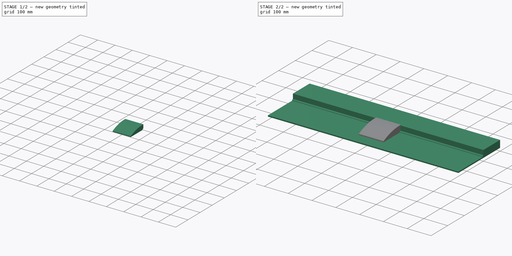
[diagram: build sequence overview — one tinted view per stage of 2, left to right]
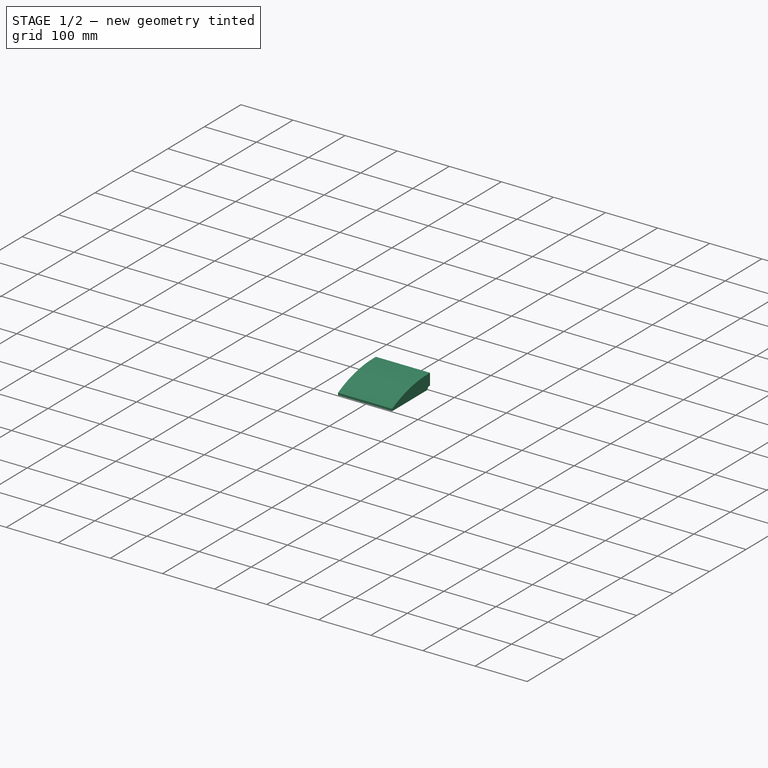
[diagram: stage 1 of 2 — iso view after this stage's code; geometry added in this stage tinted green]
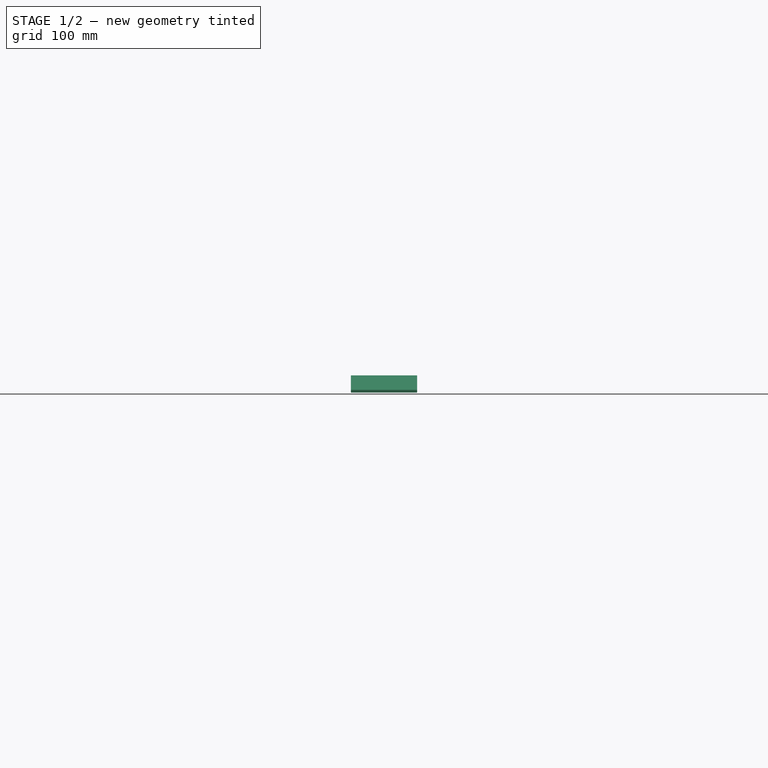
[diagram: stage 1 of 2 — front view after this stage's code; geometry added in this stage tinted green]
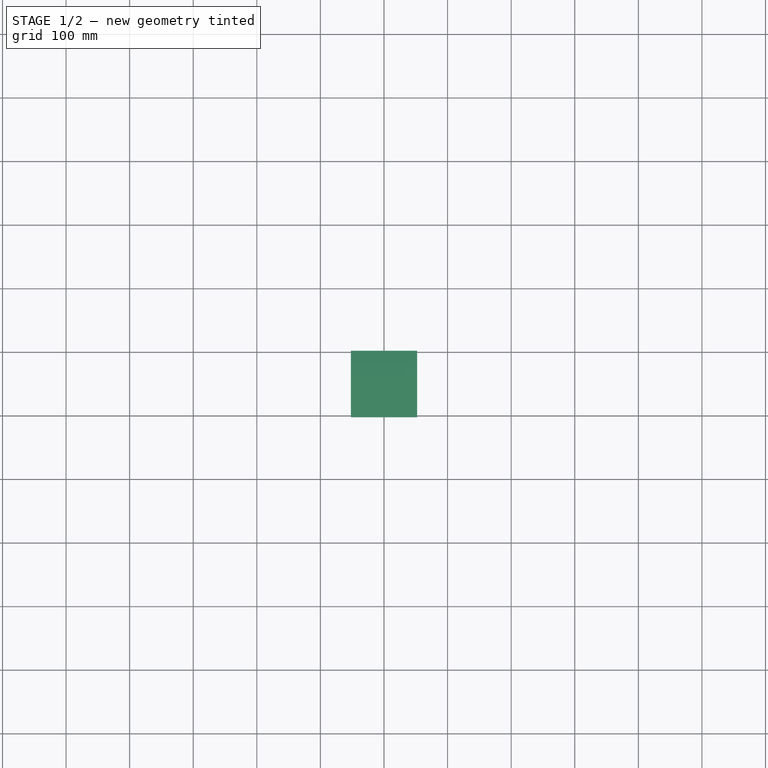
[diagram: stage 1 of 2 — top view after this stage's code; geometry added in this stage tinted green]
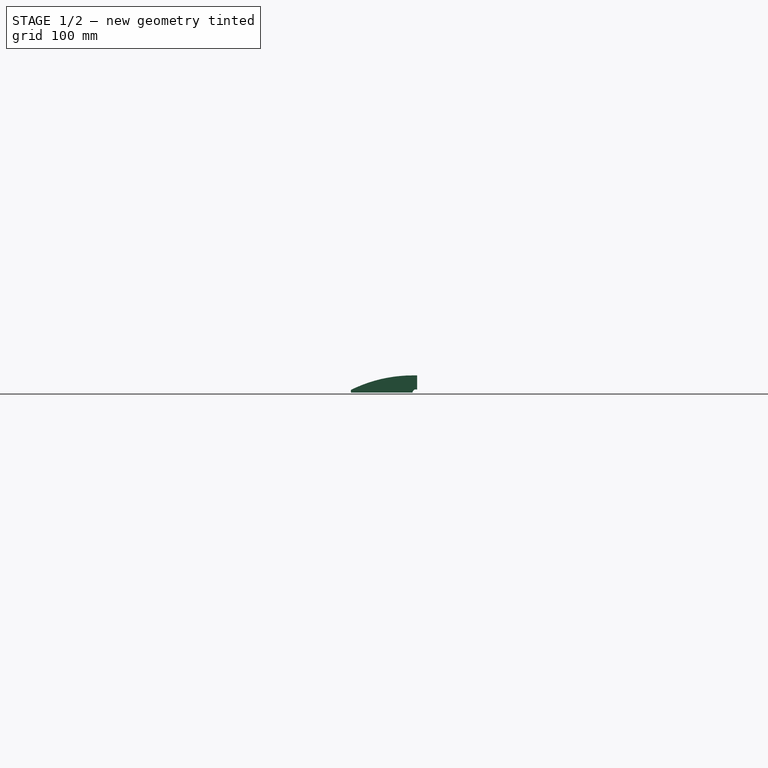
[diagram: stage 1 of 2 — right view after this stage's code; geometry added in this stage tinted green]
FCSTD DOCUMENT  (FreeCAD 0.19R22894 (Git))
Label: ramphoney_01
License: All rights reserved
LicenseURL: http://en.wikipedia.org/wiki/All_rights_reserved
objects: Sketcher::SketchObject×3, PartDesign::Pad×3, PartDesign::Body×2, PartDesign::Plane×2, PartDesign::Thickness×1
note: 15 computed .brp shape members not serialized (recipe doc carries the construction recipe); baked Part::Feature solids carry a one-line shape summary decoded from their .brp

FEATURE [PartDesign::Body] Body  label="Floor"
  Group = -> [Sketch,Pad]
  Origin = -> Origin
  Tip = -> Pad
FEATURE [PartDesign::Plane] DatumPlane  label="Datum_YZ"
  Length = 60
  MapMode = 5
  Placement = pos=(0,0,0) rot=(0.57735,0.57735,0.57735;2.0944rad)
  ResizeMode = 0
  Support = -> [YZ_Plane001]
  Width = 60
FEATURE [Sketcher::SketchObject] Sketch001
  MapMode = 5
  Placement = pos=(0,0,0) rot=(0.57735,0.57735,0.57735;2.0944rad)
  Support = -> [DatumPlane]
  sketch-geometry (11):
    g0: LineSegment StartX=-100 StartY=0 StartZ=0 EndX=-5 EndY=0 EndZ=0
    g1: LineSegment StartX=0 StartY=5 StartZ=0 EndX=0 EndY=25 EndZ=0
    g2: LineSegment StartX=0 StartY=25 StartZ=0 EndX=-5 EndY=25 EndZ=0
    g3: LineSegment StartX=-100 StartY=3 StartZ=0 EndX=-100 EndY=0 EndZ=0
    g4: ArcOfCircle CenterX=0 CenterY=0 CenterZ=0 NormalX=0 NormalY=0 NormalZ=1 AngleXU=0 Radius=5 StartAngle=1.5708 EndAngle=3.14159
    g5: LineSegment [constr] StartX=0 StartY=5 StartZ=0 EndX=0 EndY=0 EndZ=0
    g6: LineSegment [constr] StartX=-5 StartY=0 StartZ=0 EndX=0 EndY=0 EndZ=0
    g7: LineSegment [constr] StartX=0 StartY=5 StartZ=0 EndX=0 EndY=0 EndZ=0
    g8: LineSegment [constr] StartX=-5 StartY=0 StartZ=0 EndX=0 EndY=0 EndZ=0
    g9: GeomPoint X=0 Y=0 Z=0
    g10: ArcOfCircle CenterX=-4.99994 CenterY=-191.114 CenterZ=0 NormalX=0 NormalY=0 NormalZ=1 AngleXU=0 Radius=216.114 StartAngle=1.5708 EndAngle=2.02593
  constraints (31):
    c: Horizontal(g0)
    c: Vertical(g1)
    c: Horizontal(g2)
    c: Coincident(g5,g1)
    c: Vertical(g5)
    c: Coincident(g6,g0)
    c: Horizontal(g6)
    c: Coincident(g7,g4)
    c: Vertical(g7)
    c: Coincident(g8,g4)
    c: Horizontal(g8)
    c: PointOnObject(g9,g8)
    c: PointOnObject(g9,g7)
    c: Coincident(g5,g6)
    c: Coincident(g8,g7)
    c: Coincident(g4,g9)
    c: Vertical(g3)
    c: DistanceX(g5,g-1) = 0
    c: DistanceY(g-1,g5) = 0
    c: DistanceX(g4,g-1) = 5
    c: DistanceY(g-1,g2) = 25
    c: DistanceY(g0,g10) = 3
    c: Coincident(g10,g2)
    c: DistanceX(g2,g1) = 5
    c: DistanceX(g3,g1) = 100
    c: Coincident(g3,g0)
    c: Coincident(g4,g1)
    c: Coincident(g2,g1)
    c: Coincident(g4,g0)
    c: Coincident(g10,g3)
    c: Tangent(g2,g10)
FEATURE [PartDesign::Pad] Pad001
  Direction = (1,1,1)
  Length = 100
  Length2 = 100
  Midplane = true
  Placement = pos=(0,0,0) rot=(0.57735,0.57735,0.57735;2.0944rad)
  Profile = -> Sketch001
  Type = 0
FEATURE [PartDesign::Thickness] Thickness
  Base = -> Pad001 [Face1,Face2]
  BaseFeature = -> Pad001
  Intersection = false
  Join = 1
  Mode = 0
  SupportTransform = false
  Value = 2
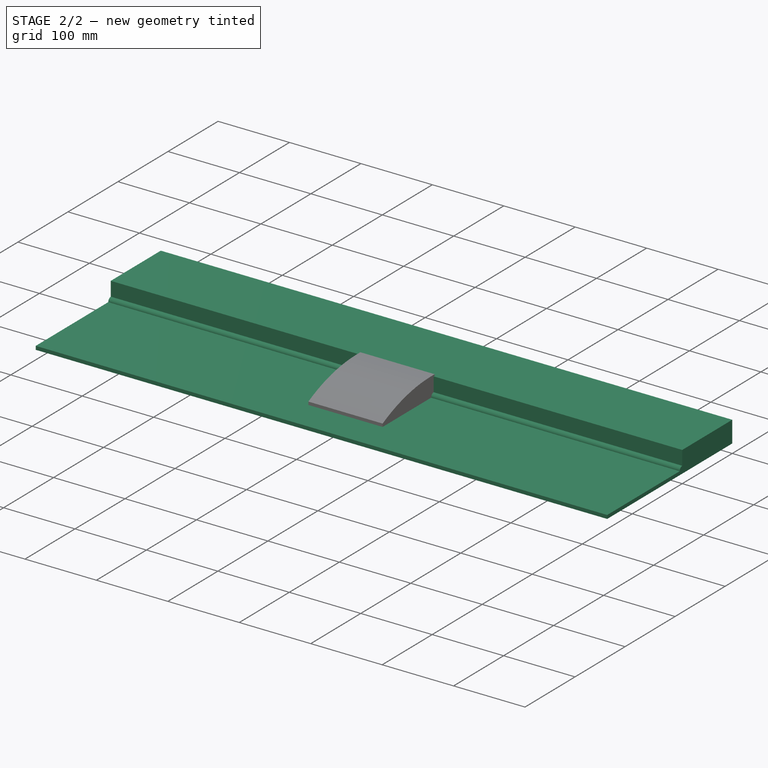
[diagram: stage 2 of 2 — iso view after this stage's code; geometry added in this stage tinted green]
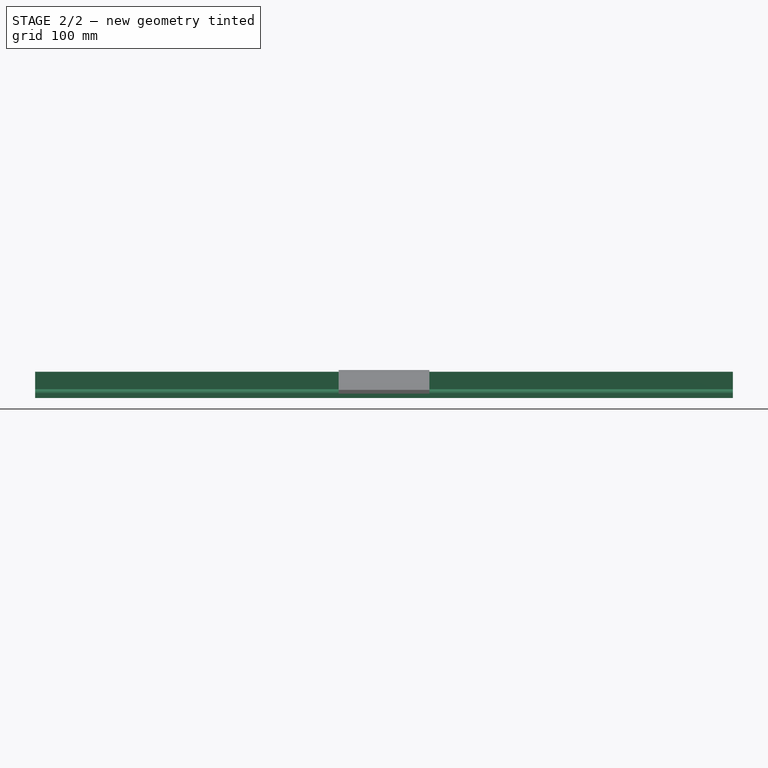
[diagram: stage 2 of 2 — front view after this stage's code; geometry added in this stage tinted green]
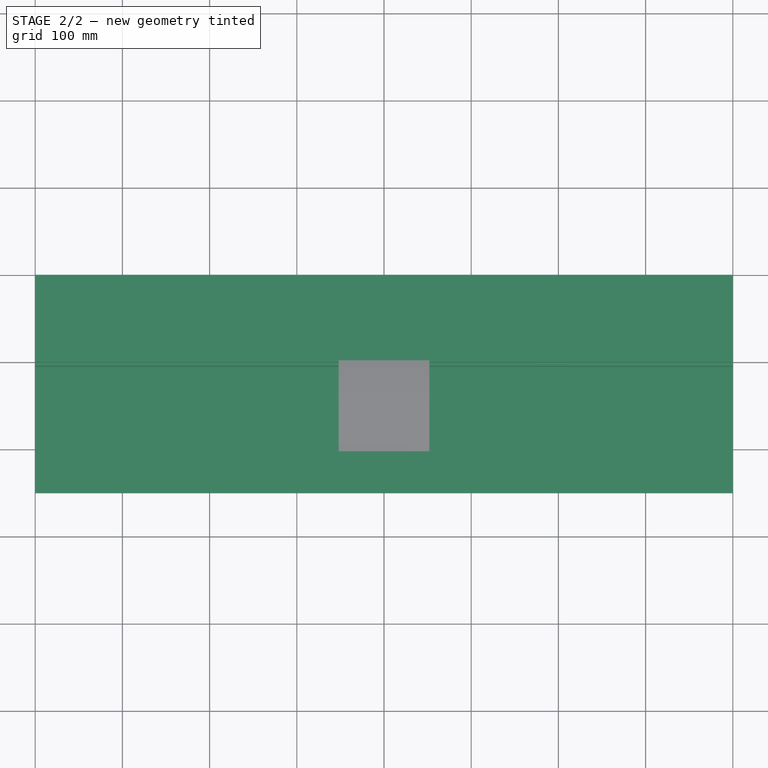
[diagram: stage 2 of 2 — top view after this stage's code; geometry added in this stage tinted green]
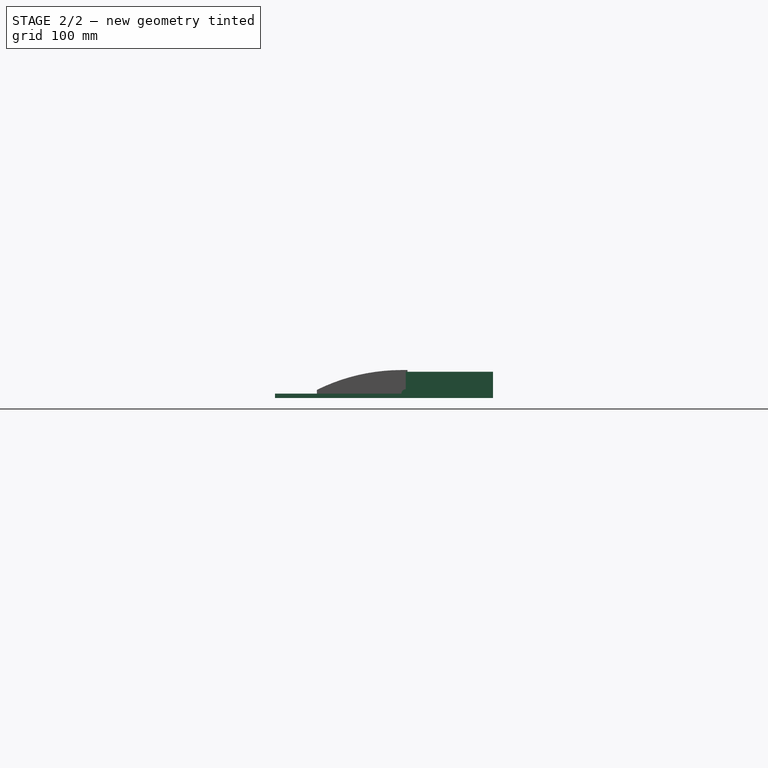
[diagram: stage 2 of 2 — right view after this stage's code; geometry added in this stage tinted green]
FEATURE [Sketcher::SketchObject] Sketch
  MapMode = 5
  Placement = pos=(0,0,0) rot=(0.57735,0.57735,0.57735;2.0944rad)
  Support = -> [YZ_Plane]
  sketch-geometry (7):
    g0: LineSegment StartX=-150 StartY=0 StartZ=0 EndX=-5 EndY=6e-16 EndZ=0
    g1: LineSegment StartX=-0.00824112 StartY=4.99999 StartZ=0 EndX=-0.00824112 EndY=25 EndZ=0
    g2: LineSegment StartX=-0.00824112 StartY=25 StartZ=0 EndX=99.9918 EndY=25 EndZ=0
    g3: ArcOfCircle CenterX=0 CenterY=0 CenterZ=0 NormalX=0 NormalY=0 NormalZ=1 AngleXU=0 Radius=5 StartAngle=1.57244 EndAngle=3.14159
    g4: LineSegment StartX=-150 StartY=0 StartZ=0 EndX=-150 EndY=-5 EndZ=0
    g5: LineSegment StartX=-150 StartY=-5 StartZ=0 EndX=99.9918 EndY=-5 EndZ=0
    g6: LineSegment StartX=99.9918 StartY=-5 StartZ=0 EndX=99.9918 EndY=25 EndZ=0
  constraints (20):
    c: PointOnObject(g0,g-1)
    c: Vertical(g1)
    c: Coincident(g1,g2)
    c: Horizontal(g2)
    c: DistanceX(g2,g2) = 100
    c: DistanceX(g0,g-1) = 150
    c: DistanceY(g-1,g1) = 25
    c: Radius(g3) = 5
    c: Coincident(g0,g4)
    c: Vertical(g4)
    c: Coincident(g4,g5)
    c: Horizontal(g5)
    c: Coincident(g5,g6)
    c: Coincident(g6,g2)
    c: Vertical(g6)
    c: DistanceY(g4,g4) = 5
    c: Coincident(g1,g3)
    c: Coincident(g0,g3)
    c: PointOnObject(g0,g-1)
    c: Coincident(g3,g-1)
FEATURE [PartDesign::Pad] Pad
  Direction = (1,1,1)
  Length = 800
  Length2 = 100
  Midplane = true
  Placement = pos=(0,0,0) rot=(0.57735,0.57735,0.57735;2.0944rad)
  Profile = -> Sketch
  Type = 0
FEATURE [PartDesign::Plane] DatumPlane001  label="Datum_XY"
  Length = 60
  MapMode = 5
  ResizeMode = 0
  Support = -> [XY_Plane001]
  Width = 60
FEATURE [Sketcher::SketchObject] Sketch002
  ExternalGeometry = -> [Thickness]
  MapMode = 5
  Support = -> [DatumPlane001]
  sketch-geometry (132):
    g0: Circle [constr] CenterX=-45 CenterY=-94.2265 CenterZ=0 NormalX=0 NormalY=0 NormalZ=1 AngleXU=0 Radius=5.7735
    g1: LineSegment StartX=-40 StartY=-97.1132 StartZ=0 EndX=-40 EndY=-91.3397 EndZ=0
    g2: LineSegment StartX=-40 StartY=-91.3397 StartZ=0 EndX=-45 EndY=-88.453 EndZ=0
    g3: LineSegment StartX=-45 StartY=-88.453 StartZ=0 EndX=-50 EndY=-91.3397 EndZ=0
    g4: LineSegment StartX=-50 StartY=-91.3397 StartZ=0 EndX=-50 EndY=-97.1132 EndZ=0
    g5: LineSegment StartX=-50 StartY=-97.1132 StartZ=0 EndX=-45 EndY=-100 EndZ=0
    g6: LineSegment StartX=-45 StartY=-100 StartZ=0 EndX=-40 EndY=-97.1132 EndZ=0
    g7: LineSegment StartX=-41 StartY=-96.5359 StartZ=0 EndX=-41 EndY=-91.9171 EndZ=0
    g8: LineSegment StartX=-41 StartY=-91.9171 StartZ=0 EndX=-45 EndY=-89.6077 EndZ=0
    g9: LineSegment StartX=-45 StartY=-89.6077 StartZ=0 EndX=-49 EndY=-91.9171 EndZ=0
    g10: LineSegment StartX=-49 StartY=-91.9171 StartZ=0 EndX=-49 EndY=-96.5359 EndZ=0
    g11: LineSegment StartX=-49 StartY=-96.5359 StartZ=0 EndX=-45 EndY=-98.8453 EndZ=0
    g12: LineSegment StartX=-45 StartY=-98.8453 StartZ=0 EndX=-41 EndY=-96.5359 EndZ=0
    g13: Circle [constr] CenterX=-45 CenterY=-94.2265 CenterZ=0 NormalX=0 NormalY=0 NormalZ=1 AngleXU=0 Radius=4.6188
    g14: GeomPoint X=-50 Y=-100 Z=0
    g15: Circle [constr] CenterX=-35 CenterY=-94.2265 CenterZ=0 NormalX=0 NormalY=0 NormalZ=1 AngleXU=0 Radius=5.7735
    g16: LineSegment StartX=-30 StartY=-97.1132 StartZ=0 EndX=-30 EndY=-91.3397 EndZ=0
    g17: LineSegment StartX=-30 StartY=-91.3397 StartZ=0 EndX=-35 EndY=-88.453 EndZ=0
    g18: LineSegment StartX=-35 StartY=-88.453 StartZ=0 EndX=-40 EndY=-91.3397 EndZ=0
    g19: LineSegment StartX=-40 StartY=-91.3397 StartZ=0 EndX=-40 EndY=-97.1132 EndZ=0
    g20: LineSegment StartX=-40 StartY=-97.1132 StartZ=0 EndX=-35 EndY=-100 EndZ=0
    g21: LineSegment StartX=-35 StartY=-100 StartZ=0 EndX=-30 EndY=-97.1132 EndZ=0
    g22: LineSegment StartX=-31 StartY=-96.5359 StartZ=0 EndX=-31 EndY=-91.9171 EndZ=0
    g23: LineSegment StartX=-31 StartY=-91.9171 StartZ=0 EndX=-35 EndY=-89.6077 EndZ=0
    g24: LineSegment StartX=-35 StartY=-89.6077 StartZ=0 EndX=-39 EndY=-91.9171 EndZ=0
    g25: LineSegment StartX=-39 StartY=-91.9171 StartZ=0 EndX=-39 EndY=-96.5359 EndZ=0
    g26: LineSegment StartX=-39 StartY=-96.5359 StartZ=0 EndX=-35 EndY=-98.8453 EndZ=0
    g27: LineSegment StartX=-35 StartY=-98.8453 StartZ=0 EndX=-31 EndY=-96.5359 EndZ=0
    g28: Circle [constr] CenterX=-35 CenterY=-94.2265 CenterZ=0 NormalX=0 NormalY=0 NormalZ=1 AngleXU=0 Radius=4.6188
    g29: GeomPoint X=-40 Y=-100 Z=0
    g30: Circle [constr] CenterX=-25 CenterY=-94.2265 CenterZ=0 NormalX=0 NormalY=0 NormalZ=1 AngleXU=0 Radius=5.7735
    g31: LineSegment StartX=-20 StartY=-97.1132 StartZ=0 EndX=-20 EndY=-91.3397 EndZ=0
    g32: LineSegment StartX=-20 StartY=-91.3397 StartZ=0 EndX=-25 EndY=-88.453 EndZ=0
    g33: LineSegment StartX=-25 StartY=-88.453 StartZ=0 EndX=-30 EndY=-91.3397 EndZ=0
    g34: LineSegment StartX=-30 StartY=-91.3397 StartZ=0 EndX=-30 EndY=-97.1132 EndZ=0
    g35: LineSegment StartX=-30 StartY=-97.1132 StartZ=0 EndX=-25 EndY=-100 EndZ=0
    g36: LineSegment StartX=-25 StartY=-100 StartZ=0 EndX=-20 EndY=-97.1132 EndZ=0
    g37: LineSegment StartX=-21 StartY=-96.5359 StartZ=0 EndX=-21 EndY=-91.9171 EndZ=0
    g38: LineSegment StartX=-21 StartY=-91.9171 StartZ=0 EndX=-25 EndY=-89.6077 EndZ=0
    g39: LineSegment StartX=-25 StartY=-89.6077 StartZ=0 EndX=-29 EndY=-91.9171 EndZ=0
    g40: LineSegment StartX=-29 StartY=-91.9171 StartZ=0 EndX=-29 EndY=-96.5359 EndZ=0
    g41: LineSegment StartX=-29 StartY=-96.5359 StartZ=0 EndX=-25 EndY=-98.8453 EndZ=0
    g42: LineSegment StartX=-25 StartY=-98.8453 StartZ=0 EndX=-21 EndY=-96.5359 EndZ=0
    g43: Circle [constr] CenterX=-25 CenterY=-94.2265 CenterZ=0 NormalX=0 NormalY=0 NormalZ=1 AngleXU=0 Radius=4.6188
    g44: GeomPoint X=-30 Y=-100 Z=0
    g45: Circle [constr] CenterX=-15 CenterY=-94.2265 CenterZ=0 NormalX=0 NormalY=0 NormalZ=1 AngleXU=0 Radius=5.7735
    g46: LineSegment StartX=-10 StartY=-97.1132 StartZ=0 EndX=-10 EndY=-91.3397 EndZ=0
    g47: LineSegment StartX=-10 StartY=-91.3397 StartZ=0 EndX=-15 EndY=-88.453 EndZ=0
    g48: LineSegment StartX=-15 StartY=-88.453 StartZ=0 EndX=-20 EndY=-91.3397 EndZ=0
    g49: LineSegment StartX=-20 StartY=-91.3397 StartZ=0 EndX=-20 EndY=-97.1132 EndZ=0
    g50: LineSegment StartX=-20 StartY=-97.1132 StartZ=0 EndX=-15 EndY=-100 EndZ=0
    g51: LineSegment StartX=-15 StartY=-100 StartZ=0 EndX=-10 EndY=-97.1132 EndZ=0
    g52: LineSegment StartX=-11 StartY=-96.5359 StartZ=0 EndX=-11 EndY=-91.9171 EndZ=0
    g53: LineSegment StartX=-11 StartY=-91.9171 StartZ=0 EndX=-15 EndY=-89.6077 EndZ=0
    g54: LineSegment StartX=-15 StartY=-89.6077 StartZ=0 EndX=-19 EndY=-91.9171 EndZ=0
    g55: LineSegment StartX=-19 StartY=-91.9171 StartZ=0 EndX=-19 EndY=-96.5359 EndZ=0
    g56: LineSegment StartX=-19 StartY=-96.5359 StartZ=0 EndX=-15 EndY=-98.8453 EndZ=0
    g57: LineSegment StartX=-15 StartY=-98.8453 StartZ=0 EndX=-11 EndY=-96.5359 EndZ=0
    g58: Circle [constr] CenterX=-15 CenterY=-94.2265 CenterZ=0 NormalX=0 NormalY=0 NormalZ=1 AngleXU=0 Radius=4.6188
    g59: GeomPoint X=-20 Y=-100 Z=0
    g60: Circle [constr] CenterX=-5 CenterY=-94.2265 CenterZ=0 NormalX=0 NormalY=0 NormalZ=1 AngleXU=0 Radius=5.7735
    g61: LineSegment StartX=8e-15 StartY=-97.1132 StartZ=0 EndX=8e-15 EndY=-91.3397 EndZ=0
    g62: LineSegment StartX=8e-15 StartY=-91.3397 StartZ=0 EndX=-5 EndY=-88.453 EndZ=0
    g63: LineSegment StartX=-5 StartY=-88.453 StartZ=0 EndX=-10 EndY=-91.3397 EndZ=0
    g64: LineSegment StartX=-10 StartY=-91.3397 StartZ=0 EndX=-10 EndY=-97.1132 EndZ=0
    g65: LineSegment StartX=-10 StartY=-97.1132 StartZ=0 EndX=-5 EndY=-100 EndZ=0
    g66: LineSegment StartX=-5 StartY=-100 StartZ=0 EndX=8e-15 EndY=-97.1132 EndZ=0
    g67: LineSegment StartX=-1 StartY=-96.5359 StartZ=0 EndX=-1 EndY=-91.9171 EndZ=0
    g68: LineSegment StartX=-1 StartY=-91.9171 StartZ=0 EndX=-5 EndY=-89.6077 EndZ=0
    g69: LineSegment StartX=-5 StartY=-89.6077 StartZ=0 EndX=-9 EndY=-91.9171 EndZ=0
    g70: LineSegment StartX=-9 StartY=-91.9171 StartZ=0 EndX=-9 EndY=-96.5359 EndZ=0
    g71: LineSegment StartX=-9 StartY=-96.5359 StartZ=0 EndX=-5 EndY=-98.8453 EndZ=0
    g72: LineSegment StartX=-5 StartY=-98.8453 StartZ=0 EndX=-1 EndY=-96.5359 EndZ=0
    g73: Circle [constr] CenterX=-5 CenterY=-94.2265 CenterZ=0 NormalX=0 NormalY=0 NormalZ=1 AngleXU=0 Radius=4.6188
    g74: GeomPoint X=-10 Y=-100 Z=0
    g75: LineSegment StartX=-35 StartY=-82.6795 StartZ=0 EndX=-40 EndY=-79.7927 EndZ=0
    g76: LineSegment StartX=-40 StartY=-79.7927 StartZ=0 EndX=-45 EndY=-82.6795 EndZ=0
    g77: LineSegment StartX=-45 StartY=-82.6795 StartZ=0 EndX=-45 EndY=-88.453 EndZ=0
    g78: LineSegment StartX=-45 StartY=-88.453 StartZ=0 EndX=-40 EndY=-91.3397 EndZ=0
    g79: LineSegment StartX=-40 StartY=-91.3397 StartZ=0 EndX=-35 EndY=-88.453 EndZ=0
    g80: LineSegment StartX=-35.9999 StartY=-87.8756 StartZ=0 EndX=-35.9999 EndY=-83.2568 EndZ=0
    g81: LineSegment StartX=-35.9999 StartY=-83.2568 StartZ=0 EndX=-39.9999 EndY=-80.9474 EndZ=0
    g82: LineSegment StartX=-39.9999 StartY=-80.9474 StartZ=0 EndX=-43.9999 EndY=-83.2568 EndZ=0
    g83: LineSegment StartX=-43.9999 StartY=-83.2568 StartZ=0 EndX=-44 EndY=-87.8756 EndZ=0
    g84: LineSegment StartX=-44 StartY=-87.8756 StartZ=0 EndX=-40 EndY=-90.185 EndZ=0
    g85: LineSegment StartX=-40 StartY=-90.185 StartZ=0 EndX=-35.9999 EndY=-87.8756 EndZ=0
    g86: Circle [constr] CenterX=-39.9999 CenterY=-85.5662 CenterZ=0 NormalX=0 NormalY=0 NormalZ=1 AngleXU=0 Radius=4.6188
    g87: GeomPoint X=-45 Y=-91.3397 Z=0
    g88: LineSegment StartX=-35 StartY=-82.6795 StartZ=0 EndX=-35 EndY=-88.453 EndZ=0
    g89: GeomPoint X=-35 Y=-91.3397 Z=0
    g90: LineSegment [constr] StartX=-40 StartY=-91.3397 StartZ=0 EndX=5.09414 EndY=-91.3397 EndZ=0
    g91: LineSegment [constr] StartX=-35 StartY=-88.453 StartZ=0 EndX=-35 EndY=-102.942 EndZ=0
    g92: GeomPoint X=-35 Y=-91.3397 Z=0
    g93: LineSegment [constr] StartX=-39.9999 StartY=-85.5662 StartZ=0 EndX=-30 EndY=-85.5662 EndZ=0
    g94: LineSegment [constr] StartX=-45 StartY=-94.2265 StartZ=0 EndX=-5 EndY=-94.2265 EndZ=0
    g95: LineSegment StartX=-25 StartY=-82.6795 StartZ=0 EndX=-30 EndY=-79.7927 EndZ=0
    g96: LineSegment StartX=-30 StartY=-79.7927 StartZ=0 EndX=-35 EndY=-82.6795 EndZ=0
    g97: LineSegment StartX=-35 StartY=-82.6795 StartZ=0 EndX=-35 EndY=-88.453 EndZ=0
    g98: LineSegment StartX=-26 StartY=-87.8756 StartZ=0 EndX=-26 EndY=-83.2568 EndZ=0
    g99: LineSegment StartX=-26 StartY=-83.2568 StartZ=0 EndX=-30 EndY=-80.9474 EndZ=0
    g100: LineSegment StartX=-30 StartY=-80.9474 StartZ=0 EndX=-34 EndY=-83.2568 EndZ=0
    g101: LineSegment StartX=-34 StartY=-83.2568 StartZ=0 EndX=-34 EndY=-87.8756 EndZ=0
    g102: LineSegment StartX=-34 StartY=-87.8756 StartZ=0 EndX=-30 EndY=-90.185 EndZ=0
    g103: LineSegment StartX=-30 StartY=-90.185 StartZ=0 EndX=-26 EndY=-87.8756 EndZ=0
    g104: Circle [constr] CenterX=-30 CenterY=-85.5662 CenterZ=0 NormalX=0 NormalY=0 NormalZ=1 AngleXU=0 Radius=4.6188
    g105: LineSegment StartX=-25 StartY=-82.6795 StartZ=0 EndX=-25 EndY=-88.453 EndZ=0
    g106: LineSegment [constr] StartX=-35 StartY=-82.6795 StartZ=0 EndX=-25 EndY=-82.6795 EndZ=0
    g107: LineSegment StartX=-15 StartY=-82.6795 StartZ=0 EndX=-20 EndY=-79.7927 EndZ=0
    g108: LineSegment StartX=-20 StartY=-79.7927 StartZ=0 EndX=-25 EndY=-82.6795 EndZ=0
    g109: LineSegment StartX=-25 StartY=-82.6795 StartZ=0 EndX=-25 EndY=-88.453 EndZ=0
    g110: LineSegment StartX=-16 StartY=-87.8757 StartZ=0 EndX=-16 EndY=-83.2568 EndZ=0
    g111: LineSegment StartX=-16 StartY=-83.2568 StartZ=0 EndX=-20 EndY=-80.9474 EndZ=0
    g112: LineSegment StartX=-20 StartY=-80.9474 StartZ=0 EndX=-24 EndY=-83.2568 EndZ=0
    g113: LineSegment StartX=-24 StartY=-83.2568 StartZ=0 EndX=-24 EndY=-87.8757 EndZ=0
    g114: LineSegment StartX=-24 StartY=-87.8757 StartZ=0 EndX=-20 EndY=-90.1851 EndZ=0
    g115: LineSegment StartX=-20 StartY=-90.1851 StartZ=0 EndX=-16 EndY=-87.8757 EndZ=0
    g116: Circle [constr] CenterX=-20 CenterY=-85.5663 CenterZ=0 NormalX=0 NormalY=0 NormalZ=1 AngleXU=0 Radius=4.6188
    g117: LineSegment StartX=-15 StartY=-82.6795 StartZ=0 EndX=-15 EndY=-88.453 EndZ=0
    g118: LineSegment [constr] StartX=-25 StartY=-82.6795 StartZ=0 EndX=-15 EndY=-82.6795 EndZ=0
    g119: LineSegment StartX=-5 StartY=-82.6795 StartZ=0 EndX=-10 EndY=-79.7928 EndZ=0
    g120: LineSegment StartX=-10 StartY=-79.7928 StartZ=0 EndX=-15 EndY=-82.6795 EndZ=0
    g121: LineSegment StartX=-15 StartY=-82.6795 StartZ=0 EndX=-15 EndY=-88.453 EndZ=0
    g122: LineSegment StartX=-6 StartY=-87.8757 StartZ=0 EndX=-6 EndY=-83.2569 EndZ=0
    g123: LineSegment StartX=-6 StartY=-83.2569 StartZ=0 EndX=-10 EndY=-80.9475 EndZ=0
    g124: LineSegment StartX=-10 StartY=-80.9475 StartZ=0 EndX=-14 EndY=-83.2569 EndZ=0
    g125: LineSegment StartX=-14 StartY=-83.2569 StartZ=0 EndX=-14 EndY=-87.8757 EndZ=0
    g126: LineSegment StartX=-14 StartY=-87.8757 StartZ=0 EndX=-10 EndY=-90.1851 EndZ=0
    g127: LineSegment StartX=-10 StartY=-90.1851 StartZ=0 EndX=-6 EndY=-87.8757 EndZ=0
    g128: Circle [constr] CenterX=-10 CenterY=-85.5663 CenterZ=0 NormalX=0 NormalY=0 NormalZ=1 AngleXU=0 Radius=4.6188
    g129: LineSegment StartX=-5 StartY=-82.6795 StartZ=0 EndX=-5 EndY=-88.453 EndZ=0
    g130: LineSegment [constr] StartX=-15 StartY=-82.6795 StartZ=0 EndX=-5 EndY=-82.6795 EndZ=0
    g131: LineSegment [constr] StartX=-39.9999 StartY=-85.5662 StartZ=0 EndX=-39.9999 EndY=-75.5662 EndZ=0
  constraints (302):
    c: PointOnObject(g1,g0)
    c: Vertical(g1)
    c: Coincident(g1,g2)
    c: Coincident(g2,g3)
    c: Coincident(g3,g4)
    c: Vertical(g4)
    c: Coincident(g4,g5)
    c: Coincident(g5,g6)
    c: Coincident(g6,g1)
    c: Vertical(g5,g0)
    c: Vertical(g0,g2)
    c: Horizontal(g3,g1)
    c: Horizontal(g1,g4)
    c: PointOnObject(g3,g0)
    c: PointOnObject(g5,g0)
    c: Equal(g3,g2)
    c: Equal(g2,g1)
    c: PointOnObject(g2,g0)
    c: Coincident(g7,g8)
    c: Coincident(g8,g9)
    c: Coincident(g9,g10)
    c: Coincident(g10,g11)
    c: Coincident(g11,g12)
    c: Coincident(g12,g7)
    c: Equal(g7, g8-g12) x5
    c: PointOnObject(g7,g13)
    c: PointOnObject(g8,g13)
    c: PointOnObject(g9,g13)
    c: PointOnObject(g10,g13)
    c: PointOnObject(g11,g13)
    c: PointOnObject(g12,g13)
    c: Vertical(g7)
    c: Coincident(g13,g0)
    c: DistanceX(g7,g1) = 1
    c: PointOnObject(g14,g-4)
    c: PointOnObject(g14,g-3)
    c: DistanceX(g14,g4) = 0
    c: DistanceY(g14,g5) = 0
    c: DistanceX(g3,g1) = 10
    c: PointOnObject(g16,g15)
    c: Vertical(g16)
    c: Coincident(g16,g17)
    c: Coincident(g17,g18)
    c: Coincident(g18,g19)
    c: Vertical(g19)
    c: Coincident(g19,g20)
    c: Coincident(g20,g21)
    c: Coincident(g21,g16)
    c: Vertical(g20,g15)
    c: Vertical(g15,g17)
    c: Horizontal(g18,g16)
    c: Horizontal(g16,g19)
    c: PointOnObject(g18,g15)
    c: PointOnObject(g20,g15)
    c: Equal(g18,g17)
    c: Equal(g17,g16)
    c: PointOnObject(g17,g15)
    c: Coincident(g22,g23)
    c: Coincident(g23,g24)
    c: Coincident(g24,g25)
    c: Coincident(g25,g26)
    c: Coincident(g26,g27)
    c: Coincident(g27,g22)
    c: Equal(g22, g23-g27) x5
    c: PointOnObject(g22,g28)
    c: PointOnObject(g23,g28)
    c: PointOnObject(g24,g28)
    c: PointOnObject(g25,g28)
    c: PointOnObject(g26,g28)
    c: PointOnObject(g27,g28)
    c: Vertical(g22)
    c: Coincident(g28,g15)
    c: DistanceX(g22,g16) = 1
    c: DistanceX(g29,g19) = 0
    c: DistanceY(g29,g20) = 0
    c: DistanceX(g18,g16) = 10
    c: PointOnObject(g29,g-4)
    c: Vertical(g29,g1)
    c: PointOnObject(g31,g30)
    c: Vertical(g31)
    c: Coincident(g31,g32)
    c: Coincident(g32,g33)
    c: Coincident(g33,g34)
    c: Vertical(g34)
    c: Coincident(g34,g35)
    c: Coincident(g35,g36)
    c: Coincident(g36,g31)
    c: Vertical(g35,g30)
    c: Vertical(g30,g32)
    c: Horizontal(g33,g31)
    c: Horizontal(g31,g34)
    c: PointOnObject(g33,g30)
    c: PointOnObject(g35,g30)
    c: Equal(g33,g32)
    c: Equal(g32,g31)
    c: PointOnObject(g32,g30)
    c: Coincident(g37,g38)
    c: Coincident(g38,g39)
    c: Coincident(g39,g40)
    c: Coincident(g40,g41)
    c: Coincident(g41,g42)
    c: Coincident(g42,g37)
    c: Equal(g37, g38-g42) x5
    c: PointOnObject(g37,g43)
    c: PointOnObject(g38,g43)
    c: PointOnObject(g39,g43)
    c: PointOnObject(g40,g43)
    c: PointOnObject(g41,g43)
    c: PointOnObject(g42,g43)
    c: Vertical(g37)
    c: Coincident(g43,g30)
    c: DistanceX(g37,g31) = 1
    c: DistanceX(g44,g34) = 0
    c: DistanceY(g44,g35) = 0
    c: DistanceX(g33,g31) = 10
    c: PointOnObject(g46,g45)
    c: Vertical(g46)
    c: Coincident(g46,g47)
    c: Coincident(g47,g48)
    c: Coincident(g48,g49)
    c: Vertical(g49)
    c: Coincident(g49,g50)
    c: Coincident(g50,g51)
    c: Coincident(g51,g46)
    c: Vertical(g50,g45)
    c: Vertical(g45,g47)
    c: Horizontal(g48,g46)
    c: Horizontal(g46,g49)
    c: PointOnObject(g48,g45)
    c: PointOnObject(g50,g45)
    c: Equal(g48,g47)
    c: Equal(g47,g46)
    c: PointOnObject(g47,g45)
    c: Coincident(g52,g53)
    c: Coincident(g53,g54)
    c: Coincident(g54,g55)
    c: Coincident(g55,g56)
    c: Coincident(g56,g57)
    c: Coincident(g57,g52)
    c: Equal(g52, g53-g57) x5
    c: PointOnObject(g52,g58)
    c: PointOnObject(g53,g58)
    c: PointOnObject(g54,g58)
    c: PointOnObject(g55,g58)
    c: PointOnObject(g56,g58)
    c: PointOnObject(g57,g58)
    c: Vertical(g52)
    c: Coincident(g58,g45)
    c: DistanceX(g52,g46) = 1
    c: DistanceX(g59,g49) = 0
    c: DistanceY(g59,g50) = 0
    c: DistanceX(g48,g46) = 10
    c: Vertical(g59,g31)
    c: PointOnObject(g59,g-4)
    c: Vertical(g44,g16)
    c: PointOnObject(g61,g60)
    c: Vertical(g61)
    c: Coincident(g61,g62)
    c: Coincident(g62,g63)
    c: Coincident(g63,g64)
    c: Vertical(g64)
    c: Coincident(g64,g65)
    c: Coincident(g65,g66)
    c: Coincident(g66,g61)
    c: Vertical(g65,g60)
    c: Vertical(g60,g62)
    c: Horizontal(g63,g61)
    c: Horizontal(g61,g64)
    c: PointOnObject(g63,g60)
    c: PointOnObject(g65,g60)
    c: Equal(g63,g62)
    c: Equal(g62,g61)
    c: PointOnObject(g62,g60)
    c: Coincident(g67,g68)
    c: Coincident(g68,g69)
    c: Coincident(g69,g70)
    c: Coincident(g70,g71)
    c: Coincident(g71,g72)
    c: Coincident(g72,g67)
    c: Equal(g67, g68-g72) x5
    c: PointOnObject(g67,g73)
    c: PointOnObject(g68,g73)
    c: PointOnObject(g69,g73)
    c: PointOnObject(g70,g73)
    c: PointOnObject(g71,g73)
    c: PointOnObject(g72,g73)
    c: Vertical(g67)
    c: Coincident(g73,g60)
    c: DistanceX(g67,g61) = 1
    c: DistanceX(g74,g64) = 0
    c: DistanceY(g74,g65) = 0
    c: DistanceX(g63,g61) = 10
    c: Vertical(g46,g74)
    c: PointOnObject(g65,g-4)
    c: Coincident(g75,g76)
    c: Coincident(g76,g77)
    c: Vertical(g77)
    c: Coincident(g77,g78)
    c: Coincident(g78,g79)
    c: Equal(g76,g75)
    c: Coincident(g80,g81)
    c: Coincident(g81,g82)
    c: Coincident(g82,g83)
    c: Coincident(g83,g84)
    c: Coincident(g84,g85)
    c: Coincident(g85,g80)
    c: Equal(g80, g81-g84) x4
    c: PointOnObject(g80,g86)
    c: PointOnObject(g81,g86)
    c: PointOnObject(g82,g86)
    c: PointOnObject(g83,g86)
    c: PointOnObject(g84,g86)
    c: PointOnObject(g85,g86)
    c: Vertical(g80)
    c: DistanceX(g87,g77) = 0
    c: DistanceY(g87,g78) = 0
    c: Vertical(g88)
    c: DistanceX(g89,g88) = 0
    c: Coincident(g90,g1)
    c: Horizontal(g90)
    c: Coincident(g91,g17)
    c: Vertical(g91)
    c: PointOnObject(g92,g91)
    c: PointOnObject(g92,g90)
    c: Coincident(g89,g92)
    c: PointOnObject(g35,g-4)
    c: Coincident(g93,g86)
    c: Horizontal(g93)
    c: Coincident(g94,g0)
    c: Coincident(g94,g60)
    c: Coincident(g95,g96)
    c: Coincident(g96,g97)
    c: Vertical(g97)
    c: Equal(g96,g95)
    c: Coincident(g98,g99)
    c: Coincident(g99,g100)
    c: Coincident(g100,g101)
    c: Coincident(g101,g102)
    c: Coincident(g102,g103)
    c: Coincident(g103,g98)
    c: Equal(g98, g99-g102) x4
    c: PointOnObject(g98,g104)
    c: PointOnObject(g99,g104)
    c: PointOnObject(g100,g104)
    c: PointOnObject(g101,g104)
    c: PointOnObject(g102,g104)
    c: PointOnObject(g103,g104)
    c: Vertical(g98)
    c: Vertical(g105)
    c: Coincident(g75,g106)
    c: Coincident(g95,g106)
    c: Distance(g106) = 10
    c: Angle(g106) = -4e-07
    c: Coincident(g107,g108)
    c: Coincident(g108,g109)
    c: Vertical(g109)
    c: Equal(g108,g107)
    c: Coincident(g110,g111)
    c: Coincident(g111,g112)
    c: Coincident(g112,g113)
    c: Coincident(g113,g114)
    c: Coincident(g114,g115)
    c: Coincident(g115,g110)
    c: Equal(g110, g111-g114) x4
    c: PointOnObject(g110,g116)
    c: PointOnObject(g111,g116)
    c: PointOnObject(g112,g116)
    c: PointOnObject(g113,g116)
    c: PointOnObject(g114,g116)
    c: PointOnObject(g115,g116)
    c: Vertical(g110)
    c: Vertical(g117)
    c: Coincident(g95,g118)
    c: Coincident(g107,g118)
    c: Equal(g106,g118)
    c: Parallel(g118,g106)
    c: Coincident(g119,g120)
    c: Coincident(g120,g121)
    c: Vertical(g121)
    c: Equal(g120,g119)
    c: Coincident(g122,g123)
    c: Coincident(g123,g124)
    c: Coincident(g124,g125)
    c: Coincident(g125,g126)
    c: Coincident(g126,g127)
    c: Coincident(g127,g122)
    c: Equal(g122, g123-g126) x4
    c: PointOnObject(g122,g128)
    c: PointOnObject(g123,g128)
    c: PointOnObject(g124,g128)
    c: PointOnObject(g125,g128)
    c: PointOnObject(g126,g128)
    c: PointOnObject(g127,g128)
    c: Vertical(g122)
    c: Vertical(g129)
    c: Coincident(g107,g130)
    c: Coincident(g119,g130)
    c: Equal(g106,g130)
    c: Parallel(g130,g106)
    c: Coincident(g104,g93)
    c: Coincident(g131,g86)
    c: Vertical(g131)
FEATURE [PartDesign::Pad] Pad002
  BaseFeature = -> Thickness
  Direction = (1,1,1)
  Length = 10
  Length2 = 100
  Profile = -> Sketch002
  Type = 3
  UpToFace = -> Thickness [Face3]
FEATURE [PartDesign::Body] Body001
  Group = -> [DatumPlane,DatumPlane001,Sketch001,Pad001,Thickness,Sketch002,Pad002]
  Origin = -> Origin001
  Tip = -> Pad002
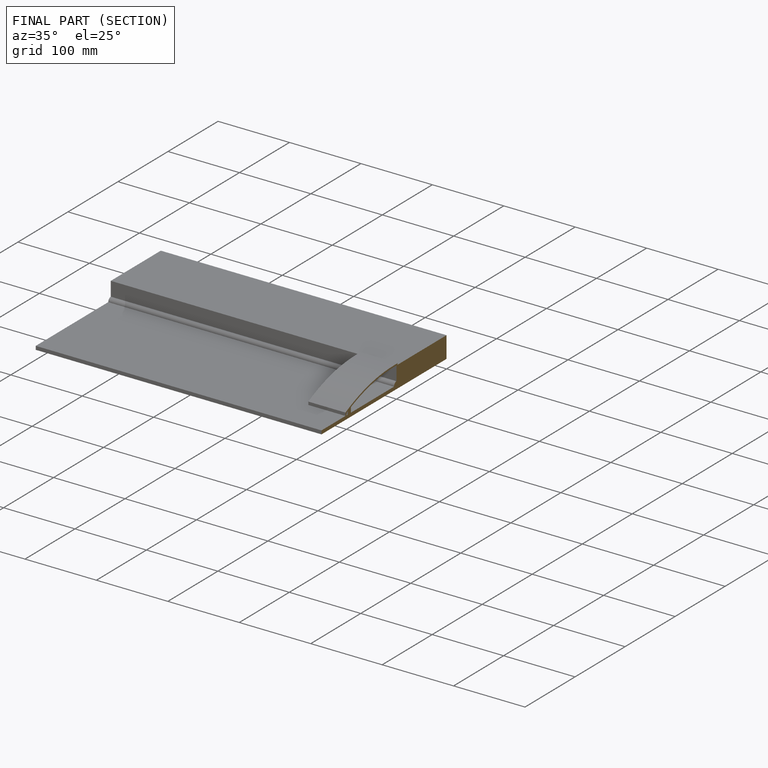
[diagram: finished part — half-section view (interior)]
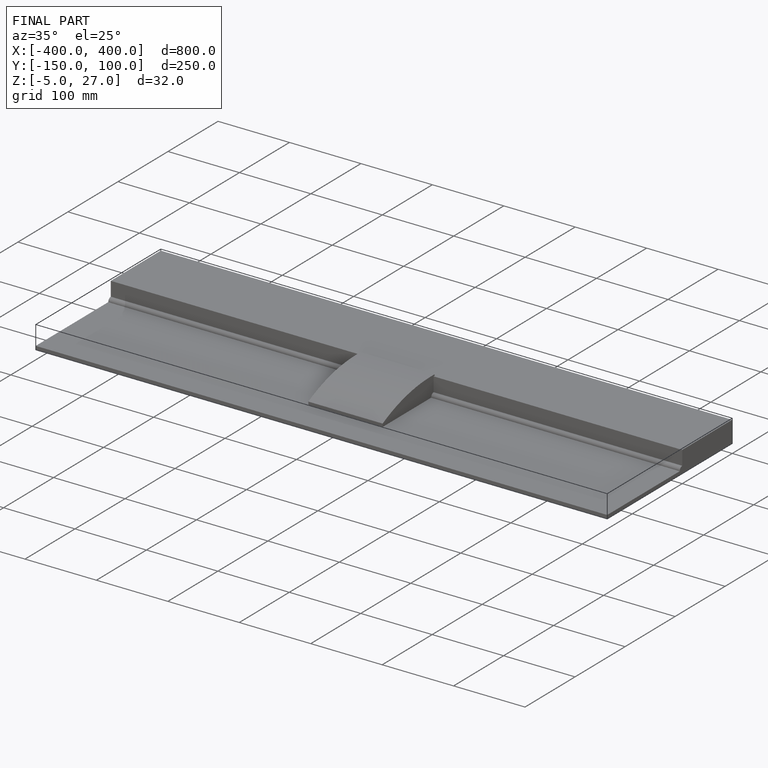
[diagram: finished part — iso view with bounding-box wireframe]
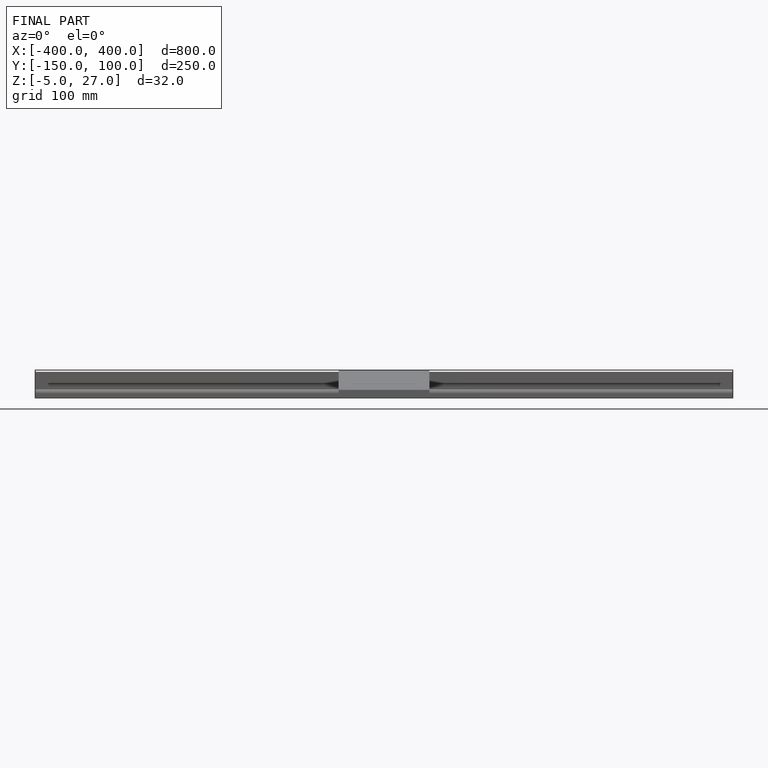
[diagram: finished part — front view with bounding-box wireframe]
